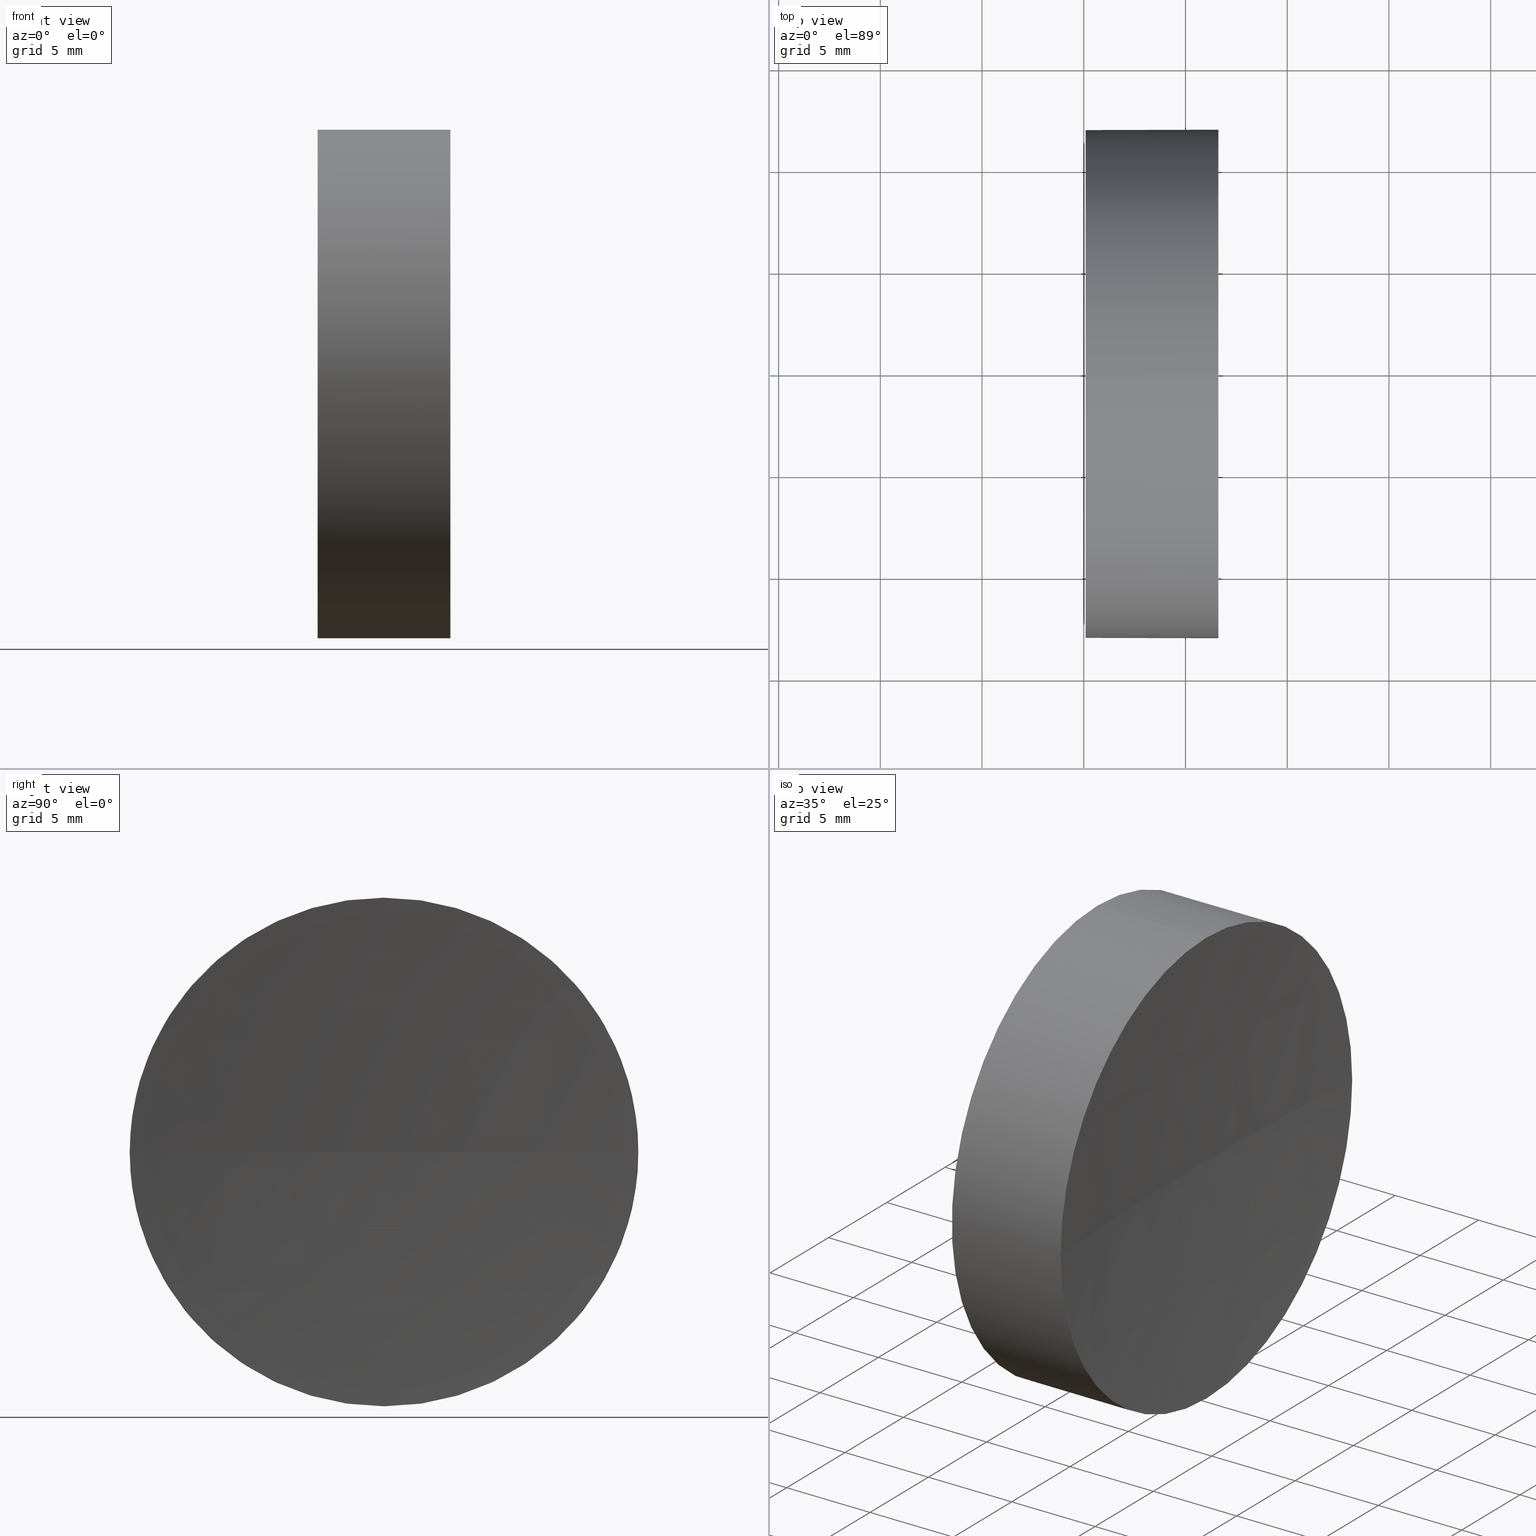
[diagram: canonical four-view strip — front | top / right | iso, engineering-drawing reading convention]
A machine part, canonical four-view strip (front | top / right | iso — engineering-drawing reading convention). The complete STEP part file that produces these views, byte-faithful:
ISO-10303-21;
HEADER;
FILE_DESCRIPTION (( 'STEP AP214' ),
    '1' );
FILE_NAME ('270026.STEP',
    '2019-07-22T07:12:39',
    ( '' ),
    ( '' ),
    'SwSTEP 2.0',
    'SolidWorks 2016',
    '' );
FILE_SCHEMA (( 'AUTOMOTIVE_DESIGN' ));
ENDSEC;

DATA;
#1 = PRESENTATION_STYLE_ASSIGNMENT (( #71 ) ) ;
#2 = LINE ( 'NONE', #5, #108 ) ;
#3 = DIRECTION ( 'NONE',  ( 0.0000000000000000000, 0.0000000000000000000, 1.000000000000000000 ) ) ;
#4 = CARTESIAN_POINT ( 'NONE',  ( 121.6143964708713000, 69.37802112337243400, 12.50000000000002500 ) ) ;
#5 = CARTESIAN_POINT ( 'NONE',  ( 108.9851430021651000, 69.37802112337243400, -12.50000000000001100 ) ) ;
#6 = DIRECTION ( 'NONE',  ( -1.000000000000000000, -0.0000000000000000000, -0.0000000000000000000 ) ) ;
#7 = CIRCLE ( 'NONE', #74, 12.49999999999999600 ) ;
#8 = AXIS2_PLACEMENT_3D ( 'NONE', #107, #171, #94 ) ;
#9 = ADVANCED_FACE ( 'NONE', ( #104 ), #38, .F. ) ;
#10 = CARTESIAN_POINT ( 'NONE',  ( 121.6143964708713000, 69.37802112337243400, 0.0000000000000000000 ) ) ;
#11 = UNCERTAINTY_MEASURE_WITH_UNIT (LENGTH_MEASURE( 1.000000000000000100E-005 ), #72, 'distance_accuracy_value', 'NONE');
#12 = DIRECTION ( 'NONE',  ( 0.0000000000000000000, 0.0000000000000000000, 1.000000000000000000 ) ) ;
#13 = DIRECTION ( 'NONE',  ( -1.000000000000000000, -0.0000000000000000000, -0.0000000000000000000 ) ) ;
#14 = DIRECTION ( 'NONE',  ( 0.0000000000000000000, 0.0000000000000000000, 1.000000000000000000 ) ) ;
#15 = EDGE_LOOP ( 'NONE', ( #123, #28, #49, #180, #177 ) ) ;
#16 = FILL_AREA_STYLE ('',( #56 ) ) ;
#17 = UNCERTAINTY_MEASURE_WITH_UNIT (LENGTH_MEASURE( 1.000000000000000100E-005 ), #160, 'distance_accuracy_value', 'NONE');
#18 = VERTEX_POINT ( 'NONE', #50 ) ;
#19 = VERTEX_POINT ( 'NONE', #24 ) ;
#20 = CARTESIAN_POINT ( 'NONE',  ( 271.0926557596387700, 69.37802112337249100, 0.0000000000000000000 ) ) ;
#21 = ORIENTED_EDGE ( 'NONE', *, *, #174, .T. ) ;
#22 = MECHANICAL_DESIGN_GEOMETRIC_PRESENTATION_REPRESENTATION (  '', ( #112 ), #147 ) ;
#23 = EDGE_LOOP ( 'NONE', ( #105, #91, #185, #168 ) ) ;
#24 = CARTESIAN_POINT ( 'NONE',  ( 121.6143964708713000, 56.87802112337238500, 0.0000000000000000000 ) ) ;
#25 = DIRECTION ( 'NONE',  ( 0.0000000000000000000, 0.0000000000000000000, -1.000000000000000000 ) ) ;
#26 = SPHERICAL_SURFACE ( 'NONE', #34, 150.0000000000000000 ) ;
#27 =( NAMED_UNIT ( * ) PLANE_ANGLE_UNIT ( ) SI_UNIT ( $, .RADIAN. ) );
#28 = ORIENTED_EDGE ( 'NONE', *, *, #157, .T. ) ;
#29 = CARTESIAN_POINT ( 'NONE',  ( 121.6143964708713000, 69.37802112337243400, 0.0000000000000000000 ) ) ;
#30 = DIRECTION ( 'NONE',  ( 0.0000000000000000000, 0.0000000000000000000, 1.000000000000000000 ) ) ;
#31 = DIRECTION ( 'NONE',  ( -1.000000000000000000, -0.0000000000000000000, -0.0000000000000000000 ) ) ;
#32 = DIRECTION ( 'NONE',  ( 0.0000000000000000000, -1.224646799147353200E-016, 1.000000000000000000 ) ) ;
#33 =( NAMED_UNIT ( * ) PLANE_ANGLE_UNIT ( ) SI_UNIT ( $, .RADIAN. ) );
#34 = AXIS2_PLACEMENT_3D ( 'NONE', #20, #35, #169 ) ;
#35 = DIRECTION ( 'NONE',  ( 0.0000000000000000000, 0.0000000000000000000, 1.000000000000000000 ) ) ;
#36 =( GEOMETRIC_REPRESENTATION_CONTEXT ( 3 ) GLOBAL_UNCERTAINTY_ASSIGNED_CONTEXT ( ( #153 ) ) GLOBAL_UNIT_ASSIGNED_CONTEXT ( ( #161, #27, #99 ) ) REPRESENTATION_CONTEXT ( 'NONE', 'WORKASPACE' ) );
#37 = VECTOR ( 'NONE', #6, 1000.000000000000000 ) ;
#38 = PLANE ( 'NONE',  #149 ) ;
#39 = AXIS2_PLACEMENT_3D ( 'NONE', #186, #138, #3 ) ;
#40 = EDGE_CURVE ( 'NONE', #19, #93, #183, .T. ) ;
#41 = CARTESIAN_POINT ( 'NONE',  ( 121.6143964708713000, 69.37802112337243400, 0.0000000000000000000 ) ) ;
#42 = CARTESIAN_POINT ( 'NONE',  ( 108.9851430021651000, 69.37802112337243400, 12.50000000000001100 ) ) ;
#43 = DIRECTION ( 'NONE',  ( 0.0000000000000000000, 0.0000000000000000000, 1.000000000000000000 ) ) ;
#44 = DIRECTION ( 'NONE',  ( -1.000000000000000000, -0.0000000000000000000, -0.0000000000000000000 ) ) ;
#45 = ADVANCED_FACE ( 'NONE', ( #135 ), #26, .F. ) ;
#46 = DIRECTION ( 'NONE',  ( 1.000000000000000000, 0.0000000000000000000, 0.0000000000000000000 ) ) ;
#47 = CIRCLE ( 'NONE', #167, 12.50000000000002500 ) ;
#48 = PRODUCT_DEFINITION_CONTEXT ( 'detailed design', #89, 'design' ) ;
#49 = ORIENTED_EDGE ( 'NONE', *, *, #67, .F. ) ;
#50 = CARTESIAN_POINT ( 'NONE',  ( 121.6143964708713000, 69.37802112337243400, -12.50000000000002500 ) ) ;
#51 = EDGE_LOOP ( 'NONE', ( #128, #173, #136, #58 ) ) ;
#52 = AXIS2_PLACEMENT_3D ( 'NONE', #139, #12, #69 ) ;
#53 = CARTESIAN_POINT ( 'NONE',  ( 121.0926557596387600, 69.37802112337247700, 0.0000000000000000000 ) ) ;
#54 = DIRECTION ( 'NONE',  ( 0.0000000000000000000, -1.000000000000000000, -1.224646799147353200E-016 ) ) ;
#55 = ORIENTED_EDGE ( 'NONE', *, *, #157, .F. ) ;
#56 = FILL_AREA_STYLE_COLOUR ( '', #73 ) ;
#57 = DIRECTION ( 'NONE',  ( 0.0000000000000000000, 0.0000000000000000000, 1.000000000000000000 ) ) ;
#58 = ORIENTED_EDGE ( 'NONE', *, *, #165, .F. ) ;
#59 = AXIS2_PLACEMENT_3D ( 'NONE', #150, #134, #62 ) ;
#60 = AXIS2_PLACEMENT_3D ( 'NONE', #101, #44, #14 ) ;
#61 = SURFACE_STYLE_FILL_AREA ( #16 ) ;
#62 = DIRECTION ( 'NONE',  ( 0.0000000000000000000, 0.0000000000000000000, 1.000000000000000000 ) ) ;
#63 = VERTEX_POINT ( 'NONE', #119 ) ;
#64 = ADVANCED_FACE ( 'NONE', ( #125 ), #97, .T. ) ;
#65 = ORIENTED_EDGE ( 'NONE', *, *, #165, .T. ) ;
#66 = ADVANCED_BREP_SHAPE_REPRESENTATION ( '270026', ( #83, #166 ), #82 ) ;
#67 = EDGE_CURVE ( 'NONE', #63, #84, #106, .T. ) ;
#68 = FACE_OUTER_BOUND ( 'NONE', #23, .T. ) ;
#69 = DIRECTION ( 'NONE',  ( 0.0000000000000000000, -1.000000000000000000, 0.0000000000000000000 ) ) ;
#70 = DIRECTION ( 'NONE',  ( 0.0000000000000000000, 0.0000000000000000000, 1.000000000000000000 ) ) ;
#71 = SURFACE_STYLE_USAGE ( .BOTH. , #115 ) ;
#72 =( LENGTH_UNIT ( ) NAMED_UNIT ( * ) SI_UNIT ( .MILLI., .METRE. ) );
#73 = COLOUR_RGB ( '',1.000000000000000000, 1.000000000000000000, 1.000000000000000000 ) ;
#74 = AXIS2_PLACEMENT_3D ( 'NONE', #88, #141, #126 ) ;
#75 = APPLICATION_PROTOCOL_DEFINITION ( 'draft international standard', 'automotive_design', 1998, #143 ) ;
#76 = CIRCLE ( 'NONE', #77, 12.50000000000002500 ) ;
#77 = AXIS2_PLACEMENT_3D ( 'NONE', #29, #87, #70 ) ;
#78 = PRODUCT_DEFINITION ( 'δ֪', '', #95, #48 ) ;
#79 = DIRECTION ( 'NONE',  ( -1.000000000000000000, -0.0000000000000000000, -0.0000000000000000000 ) ) ;
#80 = CIRCLE ( 'NONE', #117, 12.50000000000002500 ) ;
#81 = PRODUCT_DEFINITION_SHAPE ( 'NONE', 'NONE',  #78 ) ;
#82 =( GEOMETRIC_REPRESENTATION_CONTEXT ( 3 ) GLOBAL_UNCERTAINTY_ASSIGNED_CONTEXT ( ( #17 ) ) GLOBAL_UNIT_ASSIGNED_CONTEXT ( ( #160, #100, #162 ) ) REPRESENTATION_CONTEXT ( 'NONE', 'WORKASPACE' ) );
#83 = MANIFOLD_SOLID_BREP ( '��ת1', #98 ) ;
#84 = VERTEX_POINT ( 'NONE', #179 ) ;
#85 = CYLINDRICAL_SURFACE ( 'NONE', #154, 12.50000000000001100 ) ;
#86 = CARTESIAN_POINT ( 'NONE',  ( 121.6143964708713000, 81.87802112337256200, 1.530808498934198600E-015 ) ) ;
#87 = DIRECTION ( 'NONE',  ( -1.000000000000000000, -0.0000000000000000000, -0.0000000000000000000 ) ) ;
#88 = CARTESIAN_POINT ( 'NONE',  ( 115.0926555349195200, 69.37802112337243400, 0.0000000000000000000 ) ) ;
#89 = APPLICATION_CONTEXT ( 'automotive_design' ) ;
#90 = STYLED_ITEM ( 'NONE', ( #1 ), #83 ) ;
#91 = ORIENTED_EDGE ( 'NONE', *, *, #146, .F. ) ;
#92 = VERTEX_POINT ( 'NONE', #86 ) ;
#93 = VERTEX_POINT ( 'NONE', #53 ) ;
#94 = DIRECTION ( 'NONE',  ( -1.000000000000000000, 0.0000000000000000000, 0.0000000000000000000 ) ) ;
#95 = PRODUCT_DEFINITION_FORMATION_WITH_SPECIFIED_SOURCE ( '�κ�', '', #131, .NOT_KNOWN. ) ;
#96 = ORIENTED_EDGE ( 'NONE', *, *, #174, .F. ) ;
#97 = CYLINDRICAL_SURFACE ( 'NONE', #59, 12.50000000000001100 ) ;
#98 = CLOSED_SHELL ( 'NONE', ( #120, #45, #103, #64, #9 ) ) ;
#99 =( NAMED_UNIT ( * ) SI_UNIT ( $, .STERADIAN. ) SOLID_ANGLE_UNIT ( ) );
#100 =( NAMED_UNIT ( * ) PLANE_ANGLE_UNIT ( ) SI_UNIT ( $, .RADIAN. ) );
#101 = CARTESIAN_POINT ( 'NONE',  ( 121.6143964708713000, 69.37802112337243400, 0.0000000000000000000 ) ) ;
#102 = APPLICATION_PROTOCOL_DEFINITION ( 'draft international standard', 'automotive_design', 1998, #89 ) ;
#103 = ADVANCED_FACE ( 'NONE', ( #68 ), #111, .F. ) ;
#104 = FACE_OUTER_BOUND ( 'NONE', #129, .T. ) ;
#105 = ORIENTED_EDGE ( 'NONE', *, *, #158, .F. ) ;
#106 = CIRCLE ( 'NONE', #39, 12.49999999999999600 ) ;
#107 = CARTESIAN_POINT ( 'NONE',  ( 271.0926557596387700, 69.37802112337249100, 0.0000000000000000000 ) ) ;
#108 = VECTOR ( 'NONE', #13, 1000.000000000000000 ) ;
#109 = DIRECTION ( 'NONE',  ( 1.000000000000000000, 0.0000000000000000000, 0.0000000000000000000 ) ) ;
#110 = FILL_AREA_STYLE ('',( #121 ) ) ;
#111 = SPHERICAL_SURFACE ( 'NONE', #52, 150.0000000000000000 ) ;
#112 = STYLED_ITEM ( 'NONE', ( #182 ), #66 ) ;
#113 = CARTESIAN_POINT ( 'NONE',  ( 271.0926557596387700, 69.37802112337249100, 0.0000000000000000000 ) ) ;
#114 =( NAMED_UNIT ( * ) SI_UNIT ( $, .STERADIAN. ) SOLID_ANGLE_UNIT ( ) );
#115 = SURFACE_SIDE_STYLE ('',( #148 ) ) ;
#116 = CIRCLE ( 'NONE', #152, 150.0000000000000000 ) ;
#117 = AXIS2_PLACEMENT_3D ( 'NONE', #10, #79, #30 ) ;
#118 = EDGE_LOOP ( 'NONE', ( #55, #65, #130, #164, #96 ) ) ;
#119 = CARTESIAN_POINT ( 'NONE',  ( 115.0926555349195200, 69.37802112337243400, 12.49999999999999600 ) ) ;
#120 = ADVANCED_FACE ( 'NONE', ( #156 ), #85, .T. ) ;
#121 = FILL_AREA_STYLE_COLOUR ( '', #132 ) ;
#122 = VERTEX_POINT ( 'NONE', #4 ) ;
#123 = ORIENTED_EDGE ( 'NONE', *, *, #176, .T. ) ;
#124 = DIRECTION ( 'NONE',  ( 0.0000000000000000000, 0.0000000000000000000, 1.000000000000000000 ) ) ;
#125 = FACE_OUTER_BOUND ( 'NONE', #118, .T. ) ;
#126 = DIRECTION ( 'NONE',  ( 0.0000000000000000000, 0.0000000000000000000, 1.000000000000000000 ) ) ;
#127 = PRODUCT_CONTEXT ( 'NONE', #143, 'mechanical' ) ;
#128 = ORIENTED_EDGE ( 'NONE', *, *, #176, .F. ) ;
#129 = EDGE_LOOP ( 'NONE', ( #175, #21 ) ) ;
#130 = ORIENTED_EDGE ( 'NONE', *, *, #172, .T. ) ;
#131 = PRODUCT ( '270026', '270026', '', ( #127 ) ) ;
#132 = COLOUR_RGB ( '',1.000000000000000000, 1.000000000000000000, 1.000000000000000000 ) ;
#133 = PRESENTATION_LAYER_ASSIGNMENT (  '', '', ( #90 ) ) ;
#134 = DIRECTION ( 'NONE',  ( -1.000000000000000000, -0.0000000000000000000, -0.0000000000000000000 ) ) ;
#135 = FACE_OUTER_BOUND ( 'NONE', #51, .T. ) ;
#136 = ORIENTED_EDGE ( 'NONE', *, *, #40, .F. ) ;
#137 = PRESENTATION_LAYER_ASSIGNMENT (  '', '', ( #112 ) ) ;
#138 = DIRECTION ( 'NONE',  ( -1.000000000000000000, -0.0000000000000000000, -0.0000000000000000000 ) ) ;
#139 = CARTESIAN_POINT ( 'NONE',  ( 271.0926557596387700, 69.37802112337249100, 0.0000000000000000000 ) ) ;
#140 = DIRECTION ( 'NONE',  ( -1.000000000000000000, -0.0000000000000000000, -0.0000000000000000000 ) ) ;
#141 = DIRECTION ( 'NONE',  ( -1.000000000000000000, -0.0000000000000000000, -0.0000000000000000000 ) ) ;
#142 = SURFACE_SIDE_STYLE ('',( #61 ) ) ;
#143 = APPLICATION_CONTEXT ( 'automotive_design' ) ;
#144 = SHAPE_DEFINITION_REPRESENTATION ( #81, #66 ) ;
#145 = CIRCLE ( 'NONE', #60, 12.50000000000002500 ) ;
#146 = EDGE_CURVE ( 'NONE', #122, #92, #76, .T. ) ;
#147 =( GEOMETRIC_REPRESENTATION_CONTEXT ( 3 ) GLOBAL_UNCERTAINTY_ASSIGNED_CONTEXT ( ( #11 ) ) GLOBAL_UNIT_ASSIGNED_CONTEXT ( ( #72, #33, #114 ) ) REPRESENTATION_CONTEXT ( 'NONE', 'WORKASPACE' ) );
#148 = SURFACE_STYLE_FILL_AREA ( #110 ) ;
#149 = AXIS2_PLACEMENT_3D ( 'NONE', #155, #109, #25 ) ;
#150 = CARTESIAN_POINT ( 'NONE',  ( 108.9851430021651000, 69.37802112337243400, 0.0000000000000000000 ) ) ;
#151 = LINE ( 'NONE', #42, #37 ) ;
#152 = AXIS2_PLACEMENT_3D ( 'NONE', #113, #32, #54 ) ;
#153 = UNCERTAINTY_MEASURE_WITH_UNIT (LENGTH_MEASURE( 1.000000000000000100E-005 ), #161, 'distance_accuracy_value', 'NONE');
#154 = AXIS2_PLACEMENT_3D ( 'NONE', #159, #31, #124 ) ;
#155 = CARTESIAN_POINT ( 'NONE',  ( 115.0926555349195200, 69.37802112337243400, 0.0000000000000000000 ) ) ;
#156 = FACE_OUTER_BOUND ( 'NONE', #15, .T. ) ;
#157 = EDGE_CURVE ( 'NONE', #18, #84, #2, .T. ) ;
#158 = EDGE_CURVE ( 'NONE', #92, #93, #116, .T. ) ;
#159 = CARTESIAN_POINT ( 'NONE',  ( 108.9851430021651000, 69.37802112337243400, 0.0000000000000000000 ) ) ;
#160 =( LENGTH_UNIT ( ) NAMED_UNIT ( * ) SI_UNIT ( .MILLI., .METRE. ) );
#161 =( LENGTH_UNIT ( ) NAMED_UNIT ( * ) SI_UNIT ( .MILLI., .METRE. ) );
#162 =( NAMED_UNIT ( * ) SI_UNIT ( $, .STERADIAN. ) SOLID_ANGLE_UNIT ( ) );
#163 = SURFACE_STYLE_USAGE ( .BOTH. , #142 ) ;
#164 = ORIENTED_EDGE ( 'NONE', *, *, #184, .T. ) ;
#165 = EDGE_CURVE ( 'NONE', #18, #19, #47, .T. ) ;
#166 = AXIS2_PLACEMENT_3D ( 'NONE', #181, #57, #46 ) ;
#167 = AXIS2_PLACEMENT_3D ( 'NONE', #41, #140, #43 ) ;
#168 = ORIENTED_EDGE ( 'NONE', *, *, #40, .T. ) ;
#169 = DIRECTION ( 'NONE',  ( 0.0000000000000000000, -1.000000000000000000, 0.0000000000000000000 ) ) ;
#170 = MECHANICAL_DESIGN_GEOMETRIC_PRESENTATION_REPRESENTATION (  '', ( #90 ), #36 ) ;
#171 = DIRECTION ( 'NONE',  ( 0.0000000000000000000, 0.0000000000000000000, -1.000000000000000000 ) ) ;
#172 = EDGE_CURVE ( 'NONE', #19, #122, #80, .T. ) ;
#173 = ORIENTED_EDGE ( 'NONE', *, *, #158, .T. ) ;
#174 = EDGE_CURVE ( 'NONE', #84, #63, #7, .T. ) ;
#175 = ORIENTED_EDGE ( 'NONE', *, *, #67, .T. ) ;
#176 = EDGE_CURVE ( 'NONE', #92, #18, #145, .T. ) ;
#177 = ORIENTED_EDGE ( 'NONE', *, *, #146, .T. ) ;
#178 = PRODUCT_RELATED_PRODUCT_CATEGORY ( 'part', '', ( #131 ) ) ;
#179 = CARTESIAN_POINT ( 'NONE',  ( 115.0926555349195200, 69.37802112337243400, -12.49999999999999600 ) ) ;
#180 = ORIENTED_EDGE ( 'NONE', *, *, #184, .F. ) ;
#181 = CARTESIAN_POINT ( 'NONE',  ( 0.0000000000000000000, 0.0000000000000000000, 0.0000000000000000000 ) ) ;
#182 = PRESENTATION_STYLE_ASSIGNMENT (( #163 ) ) ;
#183 = CIRCLE ( 'NONE', #8, 150.0000000000000000 ) ;
#184 = EDGE_CURVE ( 'NONE', #122, #63, #151, .T. ) ;
#185 = ORIENTED_EDGE ( 'NONE', *, *, #172, .F. ) ;
#186 = CARTESIAN_POINT ( 'NONE',  ( 115.0926555349195200, 69.37802112337243400, 0.0000000000000000000 ) ) ;
ENDSEC;
END-ISO-10303-21;
